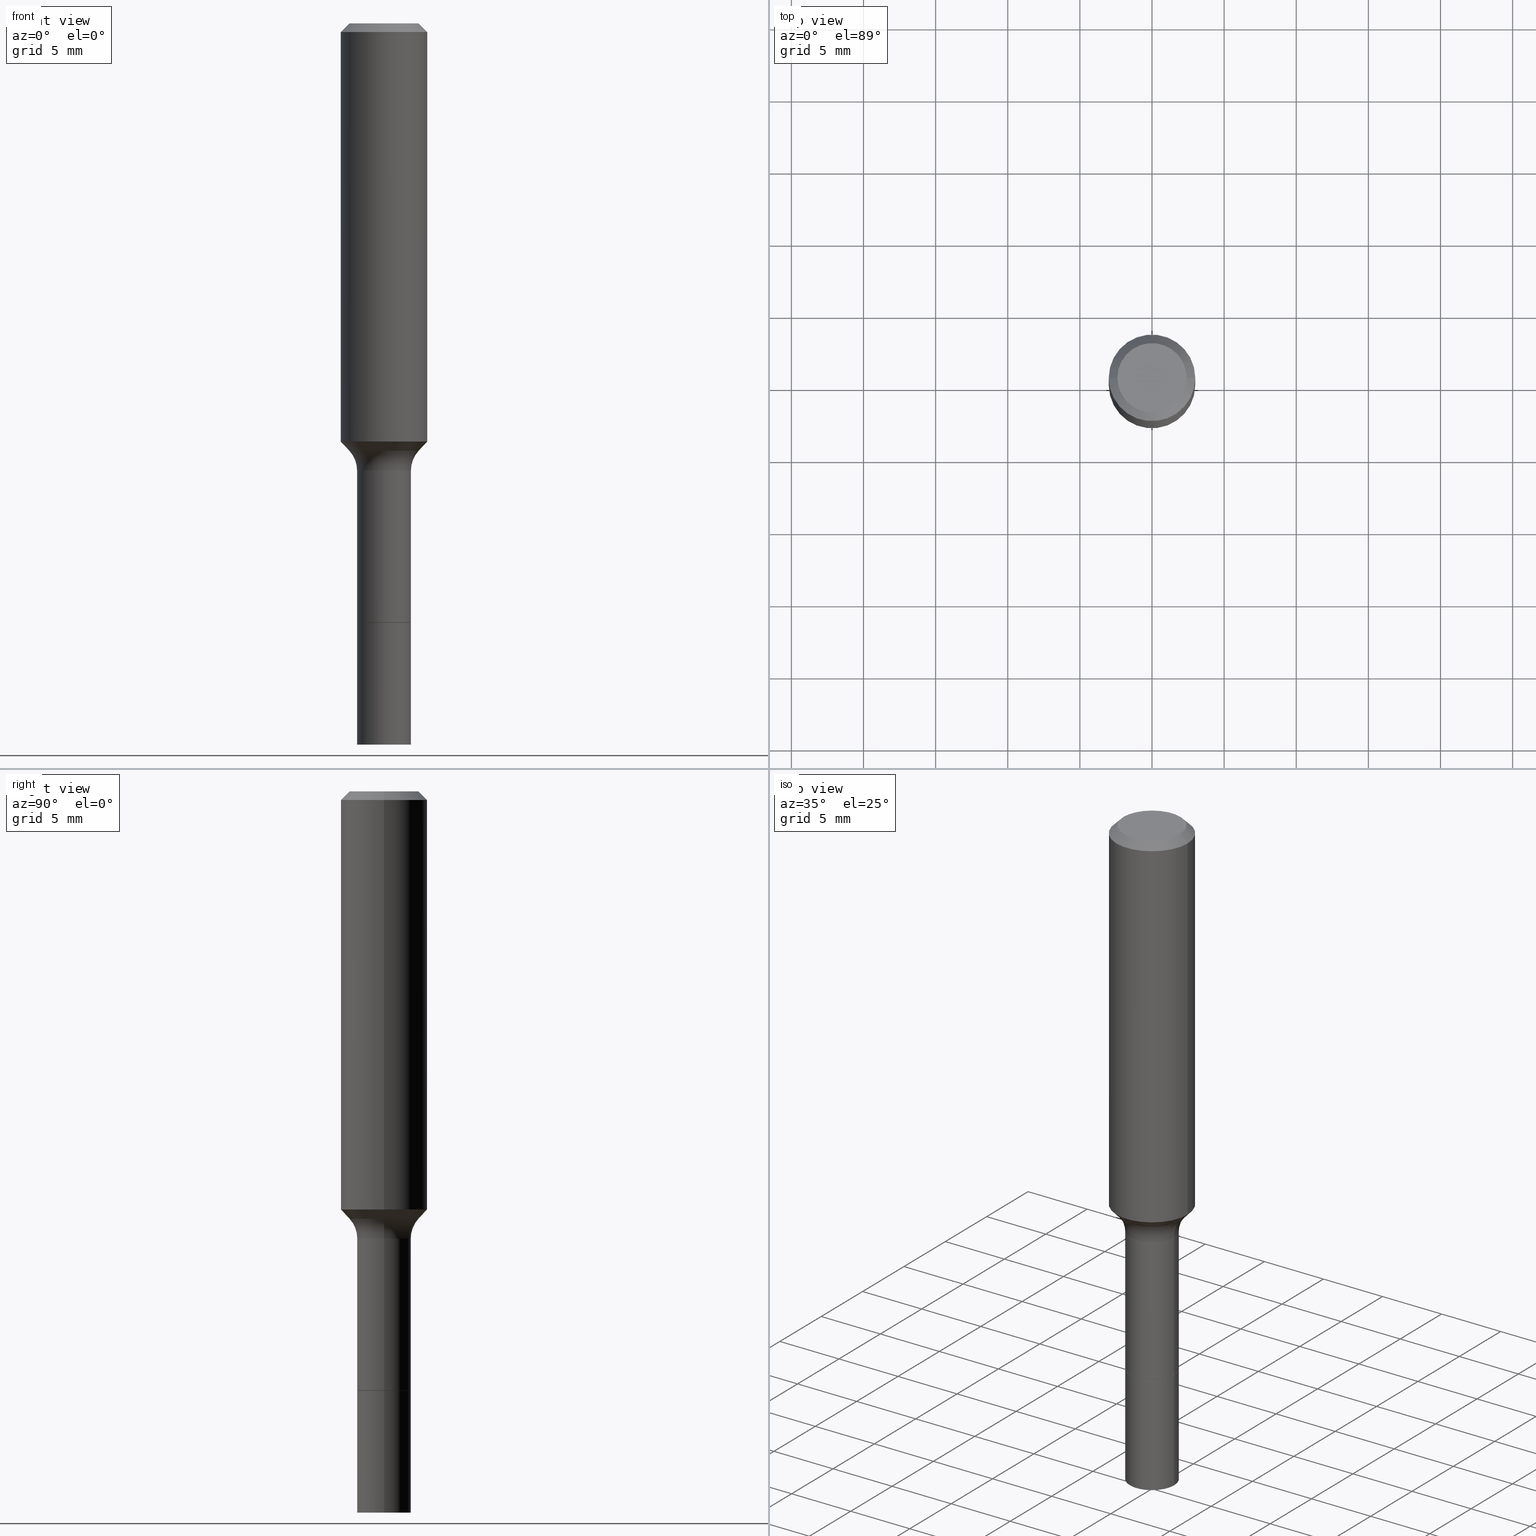
[diagram: canonical four-view strip — front | top / right | iso, engineering-drawing reading convention]
A machine part, canonical four-view strip (front | top / right | iso — engineering-drawing reading convention). The complete STEP part file that produces these views, byte-faithful:
ISO-10303-21;
HEADER;
FILE_DESCRIPTION (( 'STEP AP203' ),
    '1' );
FILE_NAME ('58492.STEP',
    '2025-04-01T15:23:42',
    ( '' ),
    ( '' ),
    'SwSTEP 2.0',
    'SolidWorks 2024',
    '' );
FILE_SCHEMA (( 'CONFIG_CONTROL_DESIGN' ));
ENDSEC;

DATA;
#1 = DIRECTION ( 'NONE',  ( -2.445468806185136877E-29, 3.491481338843145188E-15, 1.000000000000000000 ) ) ;
#2 = CARTESIAN_POINT ( 'NONE',  ( -0.1181000000000000660, 8.391509709326787887E-16, -5.809262341591047287E-30 ) ) ;
#3 = APPROVAL ( #118, 'UNSPECIFIED' ) ;
#4 = CARTESIAN_POINT ( 'NONE',  ( -0.07350000000000000977, -4.462713570749628133E-15, -1.635000000000000231 ) ) ;
#5 = EDGE_CURVE ( 'NONE', #234, #71, #333, .T. ) ;
#6 = AXIS2_PLACEMENT_3D ( 'NONE', #7, #370, #212 ) ;
#7 = CARTESIAN_POINT ( 'NONE',  ( 3.999564232515791317E-29, -5.710317729677964577E-15, -1.635500000000000176 ) ) ;
#8 = PERSON_AND_ORGANIZATION ( #266, #459 ) ;
#9 = DIRECTION ( 'NONE',  ( -2.445468806185136597E-29, 3.491481338843145583E-15, 1.000000000000000000 ) ) ;
#10 = CARTESIAN_POINT ( 'NONE',  ( 3.999564232515791317E-29, -5.710317729677964577E-15, -1.635500000000000176 ) ) ;
#11 = ORIENTED_EDGE ( 'NONE', *, *, #187, .F. ) ;
#12 = DIRECTION ( 'NONE',  ( 1.000000000000000000, -6.982962677686266711E-15, 4.876176775795936353E-29 ) ) ;
#13 = ADVANCED_FACE ( 'NONE', ( #310 ), #202, .F. ) ;
#14 = AXIS2_PLACEMENT_3D ( 'NONE', #479, #281, #243 ) ;
#15 = CIRCLE ( 'NONE', #155, 0.09447999999999998066 ) ;
#16 = ORIENTED_EDGE ( 'NONE', *, *, #115, .T. ) ;
#17 = FACE_OUTER_BOUND ( 'NONE', #340, .T. ) ;
#18 = EDGE_LOOP ( 'NONE', ( #20, #101, #227, #112 ) ) ;
#19 = DIRECTION ( 'NONE',  ( 1.000000000000000000, -6.982962677686265133E-15, 0.000000000000000000 ) ) ;
#20 = ORIENTED_EDGE ( 'NONE', *, *, #410, .F. ) ;
#21 = EDGE_LOOP ( 'NONE', ( #259, #106, #186, #453 ) ) ;
#22 = CARTESIAN_POINT ( 'NONE',  ( 3.999564232515791317E-29, -5.710317729677964577E-15, -1.635500000000000176 ) ) ;
#23 = ORIENTED_EDGE ( 'NONE', *, *, #410, .T. ) ;
#24 = CLOSED_SHELL ( 'NONE', ( #395, #357, #344, #437, #270, #433, #134, #512, #338, #229, #413, #286, #258, #495 ) ) ;
#25 = AXIS2_PLACEMENT_3D ( 'NONE', #285, #474, #240 ) ;
#26 = CC_DESIGN_PERSON_AND_ORGANIZATION_ASSIGNMENT ( #331, #110, ( #167 ) ) ;
#27 = DIRECTION ( 'NONE',  ( -0.6819983600624988096, 7.399397606724288154E-15, 0.7313537016191702378 ) ) ;
#28 = ORIENTED_EDGE ( 'NONE', *, *, #42, .F. ) ;
#29 = CARTESIAN_POINT ( 'NONE',  ( 0.09447999999999998066, -7.704367267948738690E-16, -3.085620075131172158E-17 ) ) ;
#30 = ORIENTED_EDGE ( 'NONE', *, *, #429, .F. ) ;
#31 = DIRECTION ( 'NONE',  ( 0.7071067811865460184, -7.319954787623251312E-15, -0.7071067811865490160 ) ) ;
#32 = CIRCLE ( 'NONE', #509, 0.08000000000000000167 ) ;
#33 =( GEOMETRIC_REPRESENTATION_CONTEXT ( 3 ) GLOBAL_UNCERTAINTY_ASSIGNED_CONTEXT ( ( #317 ) ) GLOBAL_UNIT_ASSIGNED_CONTEXT ( ( #242, #44, #233 ) ) REPRESENTATION_CONTEXT ( 'NONE', 'WORKASPACE' ) );
#34 = DIRECTION ( 'NONE',  ( 1.000000000000000000, -6.982962677686265922E-15, 4.883557194083112340E-29 ) ) ;
#35 = FACE_OUTER_BOUND ( 'NONE', #94, .T. ) ;
#36 = LOCAL_TIME ( 11, 23, 42.00000000000000000, #192 ) ;
#37 = CARTESIAN_POINT ( 'NONE',  ( 0.07350000000000012079, -7.386228772322672689E-15, -1.968500000000000139 ) ) ;
#38 = APPROVAL_ROLE ( '' ) ;
#39 = LINE ( 'NONE', #2, #408 ) ;
#40 = PRODUCT ( '58492', '58492', '', ( #116 ) ) ;
#41 = AXIS2_PLACEMENT_3D ( 'NONE', #49, #403, #46 ) ;
#42 = EDGE_CURVE ( 'NONE', #388, #425, #364, .T. ) ;
#43 = CIRCLE ( 'NONE', #247, 0.07349999999999994038 ) ;
#44 =( NAMED_UNIT ( * ) PLANE_ANGLE_UNIT ( ) SI_UNIT ( $, .RADIAN. ) );
#45 = CARTESIAN_POINT ( 'NONE',  ( 3.999564232515791317E-29, -5.710317729677964577E-15, -1.635500000000000176 ) ) ;
#46 = DIRECTION ( 'NONE',  ( 1.000000000000000000, -6.982962677686266711E-15, 4.876176775795936353E-29 ) ) ;
#47 = CARTESIAN_POINT ( 'NONE',  ( 3.998341498112699076E-29, -5.708571989008543862E-15, -1.635000000000000231 ) ) ;
#48 = EDGE_CURVE ( 'NONE', #388, #414, #211, .T. ) ;
#49 = CARTESIAN_POINT ( 'NONE',  ( 0.000000000000000000, 0.000000000000000000, 0.000000000000000000 ) ) ;
#50 = DIRECTION ( 'NONE',  ( -2.445468806185136597E-29, 3.491481338843145583E-15, 1.000000000000000000 ) ) ;
#51 = DIRECTION ( 'NONE',  ( -2.445468806185136597E-29, 3.491481338843145583E-15, 1.000000000000000000 ) ) ;
#52 = EDGE_LOOP ( 'NONE', ( #457, #62, #315, #147 ) ) ;
#53 = DIRECTION ( 'NONE',  ( -2.445468806185136597E-29, 3.491481338843145583E-15, 1.000000000000000000 ) ) ;
#54 = AXIS2_PLACEMENT_3D ( 'NONE', #165, #133, #255 ) ;
#55 = LOCAL_TIME ( 11, 23, 42.00000000000000000, #287 ) ;
#56 = EDGE_LOOP ( 'NONE', ( #302, #99, #307, #279 ) ) ;
#57 = CARTESIAN_POINT ( 'NONE',  ( -0.09447999999999998066, 7.009847083995354710E-16, -3.085620075132147757E-17 ) ) ;
#58 = EDGE_CURVE ( 'NONE', #71, #342, #79, .T. ) ;
#59 = VERTEX_POINT ( 'NONE', #75 ) ;
#60 = ORIENTED_EDGE ( 'NONE', *, *, #183, .F. ) ;
#61 = DIRECTION ( 'NONE',  ( -2.445468806185136597E-29, 3.491481338843145583E-15, 1.000000000000000000 ) ) ;
#62 = ORIENTED_EDGE ( 'NONE', *, *, #89, .T. ) ;
#63 = CARTESIAN_POINT ( 'NONE',  ( 7.545787641473140628E-46, -1.077338491108201769E-31, -3.085620075131671975E-17 ) ) ;
#64 = ORIENTED_EDGE ( 'NONE', *, *, #487, .T. ) ;
#65 = AXIS2_PLACEMENT_3D ( 'NONE', #447, #334, #130 ) ;
#66 = ORIENTED_EDGE ( 'NONE', *, *, #48, .T. ) ;
#67 = CARTESIAN_POINT ( 'NONE',  ( -0.07349999999999999589, -5.769400461811675225E-15, -1.635500000000000176 ) ) ;
#68 = ORIENTED_EDGE ( 'NONE', *, *, #183, .T. ) ;
#69 = EDGE_CURVE ( 'NONE', #145, #303, #32, .T. ) ;
#70 = DATE_AND_TIME ( #431, #128 ) ;
#71 = VERTEX_POINT ( 'NONE', #37 ) ;
#72 = CARTESIAN_POINT ( 'NONE',  ( 0.1180999999999999966, -9.071566814582237199E-16, -0.02362000000000014435 ) ) ;
#73 = ADVANCED_BREP_SHAPE_REPRESENTATION ( '58492', ( #109, #292, #336 ), #33 ) ;
#74 = CIRCLE ( 'NONE', #483, 0.07349999999999994038 ) ;
#75 = CARTESIAN_POINT ( 'NONE',  ( 0.09499170387046632080, -4.734181733092964683E-15, -1.165940131195000173 ) ) ;
#76 = PERSON_AND_ORGANIZATION ( #266, #459 ) ;
#77 = CARTESIAN_POINT ( 'NONE',  ( 5.776197320209328408E-31, -8.246878922347560526E-17, -0.02362000000000014435 ) ) ;
#78 = CARTESIAN_POINT ( 'NONE',  ( 0.000000000000000000, 0.000000000000000000, 0.000000000000000000 ) ) ;
#79 = LINE ( 'NONE', #400, #371 ) ;
#80 = VECTOR ( 'NONE', #163, 39.37007874015748143 ) ;
#81 = APPROVAL_PERSON_ORGANIZATION ( #472, #3, #38 ) ;
#82 = CARTESIAN_POINT ( 'NONE',  ( 0.1180999999999999966, -8.926936027602933910E-16, -0.02362000000000014435 ) ) ;
#83 = CARTESIAN_POINT ( 'NONE',  ( 3.999564232515791317E-29, -5.710317729677964577E-15, -1.635500000000000176 ) ) ;
#84 = CC_DESIGN_APPROVAL ( #206, ( #167 ) ) ;
#85 = CYLINDRICAL_SURFACE ( 'NONE', #322, 0.07350000000000005140 ) ;
#86 = APPROVAL_ROLE ( '' ) ;
#87 = CONICAL_SURFACE ( 'NONE', #161, 0.09499170387046637631, 0.7504915783575620836 ) ;
#88 = DIRECTION ( 'NONE',  ( 1.000000000000000000, -6.982962677686266711E-15, 0.000000000000000000 ) ) ;
#89 = EDGE_CURVE ( 'NONE', #150, #493, #107, .T. ) ;
#90 = FACE_OUTER_BOUND ( 'NONE', #219, .T. ) ;
#91 = EDGE_CURVE ( 'NONE', #425, #138, #296, .T. ) ;
#92 = ORIENTED_EDGE ( 'NONE', *, *, #418, .T. ) ;
#93 = CYLINDRICAL_SURFACE ( 'NONE', #41, 0.1181000000000000660 ) ;
#94 = EDGE_LOOP ( 'NONE', ( #11, #351, #423, #269 ) ) ;
#95 = DIRECTION ( 'NONE',  ( 1.000000000000000000, -6.982962677686262766E-15, 0.000000000000000000 ) ) ;
#96 = VECTOR ( 'NONE', #31, 39.37007874015748143 ) ;
#97 = EDGE_LOOP ( 'NONE', ( #463, #311, #16, #64 ) ) ;
#98 = LOCAL_TIME ( 11, 23, 42.00000000000000000, #396 ) ;
#99 = ORIENTED_EDGE ( 'NONE', *, *, #48, .F. ) ;
#100 = CARTESIAN_POINT ( 'NONE',  ( -0.07350000000000005140, -5.188068818894290870E-15, -1.635500000000000176 ) ) ;
#101 = ORIENTED_EDGE ( 'NONE', *, *, #354, .T. ) ;
#102 = ORIENTED_EDGE ( 'NONE', *, *, #58, .F. ) ;
#103 = DIRECTION ( 'NONE',  ( -2.445468806185136597E-29, 3.491481338843145583E-15, 1.000000000000000000 ) ) ;
#104 = ORIENTED_EDGE ( 'NONE', *, *, #475, .F. ) ;
#105 = DIRECTION ( 'NONE',  ( -2.445468806185136597E-29, 3.491481338843145583E-15, 1.000000000000000000 ) ) ;
#106 = ORIENTED_EDGE ( 'NONE', *, *, #5, .T. ) ;
#107 = CIRCLE ( 'NONE', #346, 0.07299999999999999545 ) ;
#108 = CIRCLE ( 'NONE', #204, 0.09499170387046637631 ) ;
#109 = MANIFOLD_SOLID_BREP ( 'Body-Move/Copy2[1]', #516 ) ;
#110 = PERSON_AND_ORGANIZATION_ROLE ( 'design_supplier' ) ;
#111 = EDGE_CURVE ( 'NONE', #150, #300, #438, .T. ) ;
#112 = ORIENTED_EDGE ( 'NONE', *, *, #405, .F. ) ;
#113 = DATE_TIME_ROLE ( 'creation_date' ) ;
#114 = CARTESIAN_POINT ( 'NONE',  ( -0.07299999999999999545, -5.188972305398980568E-15, -1.635500000000000176 ) ) ;
#115 = EDGE_CURVE ( 'NONE', #59, #265, #184, .T. ) ;
#116 = MECHANICAL_CONTEXT ( 'NONE', #394, 'mechanical' ) ;
#117 = LINE ( 'NONE', #513, #436 ) ;
#118 = APPROVAL_STATUS ( 'not_yet_approved' ) ;
#119 = DIRECTION ( 'NONE',  ( 2.438088387897960049E-29, -3.491481338843145188E-15, -1.000000000000000000 ) ) ;
#120 = APPLICATION_PROTOCOL_DEFINITION ( 'international standard', 'config_control_design', 1994, #394 ) ;
#121 = DIRECTION ( 'NONE',  ( -6.982962677686266711E-15, -1.000000000000000000, 3.491481338843145583E-15 ) ) ;
#122 = DIRECTION ( 'NONE',  ( -2.445468806185136877E-29, 3.491481338843145188E-15, 1.000000000000000000 ) ) ;
#123 = AXIS2_PLACEMENT_3D ( 'NONE', #174, #446, #294 ) ;
#124 = DIMENSIONAL_EXPONENTS ( 1.000000000000000000, 0.000000000000000000, 0.000000000000000000, 0.000000000000000000, 0.000000000000000000, 0.000000000000000000, 0.000000000000000000 ) ;
#125 = CONICAL_SURFACE ( 'NONE', #469, 0.09499170387046637631, 0.7504915783575620836 ) ;
#126 = DIRECTION ( 'NONE',  ( 1.000000000000000000, -6.982962677686273810E-15, 0.000000000000000000 ) ) ;
#127 = CARTESIAN_POINT ( 'NONE',  ( 5.776197320209328408E-31, -8.246878922347560526E-17, -0.02362000000000014435 ) ) ;
#128 = LOCAL_TIME ( 11, 23, 42.00000000000000000, #239 ) ;
#129 = DATE_AND_TIME ( #448, #177 ) ;
#130 = DIRECTION ( 'NONE',  ( -1.000000000000000000, 6.982962677686265922E-15, -4.876176775795935793E-29 ) ) ;
#131 = AXIS2_PLACEMENT_3D ( 'NONE', #77, #397, #319 ) ;
#132 = CIRCLE ( 'NONE', #195, 0.07299999999999999545 ) ;
#133 = DIRECTION ( 'NONE',  ( -2.445468806185136597E-29, 3.491481338843145583E-15, 1.000000000000000000 ) ) ;
#134 = ADVANCED_FACE ( 'NONE', ( #441 ), #477, .T. ) ;
#135 = ORIENTED_EDGE ( 'NONE', *, *, #170, .F. ) ;
#136 = CARTESIAN_POINT ( 'NONE',  ( 0.07349999999999999589, -6.223565486487904770E-15, -1.635500000000000176 ) ) ;
#137 = SECURITY_CLASSIFICATION ( '', '', #476 ) ;
#138 = VERTEX_POINT ( 'NONE', #72 ) ;
#139 = DIRECTION ( 'NONE',  ( 1.000000000000000000, -6.982962677686267499E-15, 0.000000000000000000 ) ) ;
#140 = SHAPE_DEFINITION_REPRESENTATION ( #411, #73 ) ;
#141 = ADVANCED_FACE ( 'NONE', ( #440 ), #200, .T. ) ;
#142 = VERTEX_POINT ( 'NONE', #515 ) ;
#143 = CARTESIAN_POINT ( 'NONE',  ( 0.07299999999999999545, -6.220074005149062551E-15, -1.635500000000000176 ) ) ;
#144 = VERTEX_POINT ( 'NONE', #160 ) ;
#145 = VERTEX_POINT ( 'NONE', #356 ) ;
#146 = CARTESIAN_POINT ( 'NONE',  ( 2.851270220716778580E-29, -4.070858210275671756E-15, -1.165940131195000173 ) ) ;
#147 = ORIENTED_EDGE ( 'NONE', *, *, #354, .F. ) ;
#148 = EDGE_LOOP ( 'NONE', ( #181, #175, #60, #377 ) ) ;
#149 = DIRECTION ( 'NONE',  ( 1.000000000000000000, -6.982962677686268288E-15, 0.000000000000000000 ) ) ;
#150 = VERTEX_POINT ( 'NONE', #114 ) ;
#151 = DIRECTION ( 'NONE',  ( 0.6819983600624988096, -2.208861293262478169E-15, 0.7313537016191702378 ) ) ;
#152 = ORIENTED_EDGE ( 'NONE', *, *, #475, .T. ) ;
#153 = AXIS2_PLACEMENT_3D ( 'NONE', #484, #486, #404 ) ;
#154 = CC_DESIGN_DATE_AND_TIME_ASSIGNMENT ( #70, #159, ( #137 ) ) ;
#155 = AXIS2_PLACEMENT_3D ( 'NONE', #63, #105, #312 ) ;
#156 = DIRECTION ( 'NONE',  ( -1.000000000000000000, 7.105427357601005014E-15, 0.000000000000000000 ) ) ;
#157 = APPROVAL_DATE_TIME ( #514, #206 ) ;
#158 = DIRECTION ( 'NONE',  ( -2.445468806185136597E-29, 3.491481338843145583E-15, 1.000000000000000000 ) ) ;
#159 = DATE_TIME_ROLE ( 'classification_date' ) ;
#160 = CARTESIAN_POINT ( 'NONE',  ( -0.1181000000000001354, -3.145186189004920235E-15, -1.141159517483703700 ) ) ;
#161 = AXIS2_PLACEMENT_3D ( 'NONE', #409, #406, #171 ) ;
#162 = DATE_AND_TIME ( #478, #55 ) ;
#163 = DIRECTION ( 'NONE',  ( -0.7071067811865460184, 2.468850131082241283E-15, -0.7071067811865490160 ) ) ;
#164 = CARTESIAN_POINT ( 'NONE',  ( 3.999564232515791317E-29, -5.710317729677964577E-15, -1.635500000000000176 ) ) ;
#165 = CARTESIAN_POINT ( 'NONE',  ( 2.790670002887679665E-29, -3.984337159937599615E-15, -1.141159517483703700 ) ) ;
#166 = AXIS2_PLACEMENT_3D ( 'NONE', #337, #9, #126 ) ;
#167 = PRODUCT_DEFINITION_FORMATION_WITH_SPECIFIED_SOURCE ( 'ANY', '', #40, .NOT_KNOWN. ) ;
#168 = DIRECTION ( 'NONE',  ( -2.445468806185136597E-29, 3.491481338843145583E-15, 1.000000000000000000 ) ) ;
#169 = PERSON_AND_ORGANIZATION_ROLE ( 'creator' ) ;
#170 = EDGE_CURVE ( 'NONE', #308, #138, #117, .T. ) ;
#171 = DIRECTION ( 'NONE',  ( 1.000000000000000000, -6.982962677686262766E-15, 0.000000000000000000 ) ) ;
#172 = DIRECTION ( 'NONE',  ( 1.000000000000000000, -6.982962677686262766E-15, 0.000000000000000000 ) ) ;
#173 = AXIS2_PLACEMENT_3D ( 'NONE', #188, #387, #139 ) ;
#174 = CARTESIAN_POINT ( 'NONE',  ( 2.984694677948959472E-29, -4.261352974058059028E-15, -1.220499999999999918 ) ) ;
#175 = ORIENTED_EDGE ( 'NONE', *, *, #373, .T. ) ;
#176 = CARTESIAN_POINT ( 'NONE',  ( 0.000000000000000000, 0.000000000000000000, 0.000000000000000000 ) ) ;
#177 = LOCAL_TIME ( 11, 23, 42.00000000000000000, #214 ) ;
#178 = ORIENTED_EDGE ( 'NONE', *, *, #187, .T. ) ;
#179 = FACE_OUTER_BOUND ( 'NONE', #52, .T. ) ;
#180 = ORIENTED_EDGE ( 'NONE', *, *, #191, .T. ) ;
#181 = ORIENTED_EDGE ( 'NONE', *, *, #250, .T. ) ;
#182 = CARTESIAN_POINT ( 'NONE',  ( 0.09499170387046637631, -4.734181733092964683E-15, -1.165940131195000173 ) ) ;
#183 = EDGE_CURVE ( 'NONE', #308, #144, #468, .T. ) ;
#184 = CIRCLE ( 'NONE', #295, 0.08000000000000000167 ) ;
#185 = ORIENTED_EDGE ( 'NONE', *, *, #341, .T. ) ;
#186 = ORIENTED_EDGE ( 'NONE', *, *, #58, .T. ) ;
#187 = EDGE_CURVE ( 'NONE', #144, #425, #39, .T. ) ;
#188 = CARTESIAN_POINT ( 'NONE',  ( 3.999564232515791317E-29, -5.710317729677964577E-15, -1.635500000000000176 ) ) ;
#189 = ORIENTED_EDGE ( 'NONE', *, *, #289, .T. ) ;
#190 = DIRECTION ( 'NONE',  ( -1.000000000000000000, 6.982962677686266711E-15, 0.000000000000000000 ) ) ;
#191 = EDGE_CURVE ( 'NONE', #414, #138, #290, .T. ) ;
#192 = COORDINATED_UNIVERSAL_TIME_OFFSET ( 5, 0, .BEHIND. ) ;
#193 = CARTESIAN_POINT ( 'NONE',  ( -0.1180999999999999966, 7.422191030112725094E-16, -0.02362000000000014435 ) ) ;
#194 = CONICAL_SURFACE ( 'NONE', #173, 0.07299999999999999545, 0.7853981633975507526 ) ;
#195 = AXIS2_PLACEMENT_3D ( 'NONE', #424, #53, #301 ) ;
#196 = PERSON_AND_ORGANIZATION_ROLE ( 'classification_officer' ) ;
#197 = CYLINDRICAL_SURFACE ( 'NONE', #283, 0.1181000000000000660 ) ;
#198 = PRODUCT_DEFINITION ( 'UNKNOWN', '', #167, #325 ) ;
#199 = DIRECTION ( 'NONE',  ( -2.445468806185136597E-29, 3.491481338843145583E-15, 1.000000000000000000 ) ) ;
#200 = PLANE ( 'NONE',  #458 ) ;
#201 = CALENDAR_DATE ( 2025, 1, 4 ) ;
#202 = PLANE ( 'NONE',  #261 ) ;
#203 = CIRCLE ( 'NONE', #237, 0.07349999999999999589 ) ;
#204 = AXIS2_PLACEMENT_3D ( 'NONE', #507, #260, #415 ) ;
#205 = APPROVAL_DATE_TIME ( #162, #3 ) ;
#206 = APPROVAL ( #518, 'UNSPECIFIED' ) ;
#207 = DIRECTION ( 'NONE',  ( 1.000000000000000000, -6.982962677686259611E-15, 0.000000000000000000 ) ) ;
#208 = DIRECTION ( 'NONE',  ( -2.445468806185136597E-29, 3.491481338843145583E-15, 1.000000000000000000 ) ) ;
#209 = DIRECTION ( 'NONE',  ( -2.438088387897960049E-29, 3.491481338843145188E-15, 1.000000000000000000 ) ) ;
#210 = EDGE_CURVE ( 'NONE', #493, #142, #235, .T. ) ;
#211 = CIRCLE ( 'NONE', #517, 0.09447999999999998066 ) ;
#212 = DIRECTION ( 'NONE',  ( 1.000000000000000000, -6.982962677686260400E-15, 0.000000000000000000 ) ) ;
#213 = PLANE ( 'NONE',  #65 ) ;
#214 = COORDINATED_UNIVERSAL_TIME_OFFSET ( 5, 0, .BEHIND. ) ;
#215 = DIRECTION ( 'NONE',  ( -2.445468806185136597E-29, 3.491481338843145583E-15, 1.000000000000000000 ) ) ;
#216 = ORIENTED_EDGE ( 'NONE', *, *, #329, .F. ) ;
#217 = CONICAL_SURFACE ( 'NONE', #153, 0.1180999999999999966, 0.7853981633974461696 ) ;
#218 = CONICAL_SURFACE ( 'NONE', #401, 0.07299999999999999545, 0.7853981633975507526 ) ;
#219 = EDGE_LOOP ( 'NONE', ( #30, #504, #465, #501 ) ) ;
#220 = CARTESIAN_POINT ( 'NONE',  ( 5.776197320209328408E-31, -8.246878922347560526E-17, -0.02362000000000014435 ) ) ;
#221 = APPROVAL_STATUS ( 'not_yet_approved' ) ;
#222 = ORIENTED_EDGE ( 'NONE', *, *, #289, .F. ) ;
#223 = CARTESIAN_POINT ( 'NONE',  ( 2.984694677948959472E-29, -4.261352974058059028E-15, -1.220499999999999918 ) ) ;
#224 = EDGE_LOOP ( 'NONE', ( #66, #345 ) ) ;
#225 = FACE_OUTER_BOUND ( 'NONE', #97, .T. ) ;
#226 = ORIENTED_EDGE ( 'NONE', *, *, #298, .T. ) ;
#227 = ORIENTED_EDGE ( 'NONE', *, *, #402, .T. ) ;
#228 = CIRCLE ( 'NONE', #6, 0.07349999999999999589 ) ;
#229 = ADVANCED_FACE ( 'NONE', ( #35 ), #197, .T. ) ;
#230 = EDGE_LOOP ( 'NONE', ( #222, #460 ) ) ;
#231 = DIRECTION ( 'NONE',  ( -2.445468806185136877E-29, 3.491481338843145188E-15, 1.000000000000000000 ) ) ;
#232 = ORIENTED_EDGE ( 'NONE', *, *, #253, .F. ) ;
#233 =( NAMED_UNIT ( * ) SI_UNIT ( $, .STERADIAN. ) SOLID_ANGLE_UNIT ( ) );
#234 = VERTEX_POINT ( 'NONE', #252 ) ;
#235 = LINE ( 'NONE', #511, #313 ) ;
#236 = CC_DESIGN_PERSON_AND_ORGANIZATION_ASSIGNMENT ( #8, #169, ( #167 ) ) ;
#237 = AXIS2_PLACEMENT_3D ( 'NONE', #490, #51, #372 ) ;
#238 = VECTOR ( 'NONE', #151, 39.37007874015748143 ) ;
#239 = COORDINATED_UNIVERSAL_TIME_OFFSET ( 5, 0, .BEHIND. ) ;
#240 = DIRECTION ( 'NONE',  ( 1.000000000000000000, -6.982962677686266711E-15, 4.876176775795935793E-29 ) ) ;
#241 = APPROVAL_PERSON_ORGANIZATION ( #439, #382, #86 ) ;
#242 =( CONVERSION_BASED_UNIT ( 'INCH', #398 ) LENGTH_UNIT ( ) NAMED_UNIT ( #124 ) );
#243 = DIRECTION ( 'NONE',  ( 1.000000000000000000, -6.982962677686269077E-15, 0.000000000000000000 ) ) ;
#244 = PERSON_AND_ORGANIZATION_ROLE ( 'design_owner' ) ;
#245 = DIRECTION ( 'NONE',  ( -0.7071067811866199593, 7.493145998870616062E-15, 0.7071067811864750752 ) ) ;
#246 = AXIS2_PLACEMENT_3D ( 'NONE', #368, #168, #172 ) ;
#247 = AXIS2_PLACEMENT_3D ( 'NONE', #456, #263, #19 ) ;
#248 = CC_DESIGN_DATE_AND_TIME_ASSIGNMENT ( #284, #113, ( #198 ) ) ;
#249 = DIRECTION ( 'NONE',  ( -2.445468806185136597E-29, 3.491481338843145583E-15, 1.000000000000000000 ) ) ;
#250 = EDGE_CURVE ( 'NONE', #59, #145, #443, .T. ) ;
#251 = DIRECTION ( 'NONE',  ( 1.000000000000000000, -6.982962677686268288E-15, 0.000000000000000000 ) ) ;
#252 = CARTESIAN_POINT ( 'NONE',  ( -0.07350000000000012079, -5.769400461811673647E-15, -1.968500000000000139 ) ) ;
#253 = EDGE_CURVE ( 'NONE', #138, #425, #390, .T. ) ;
#254 = AXIS2_PLACEMENT_3D ( 'NONE', #297, #257, #299 ) ;
#255 = DIRECTION ( 'NONE',  ( 1.000000000000000000, -6.982962677686269077E-15, 0.000000000000000000 ) ) ;
#256 = APPROVAL_DATE_TIME ( #129, #382 ) ;
#257 = DIRECTION ( 'NONE',  ( -2.445468806185136597E-29, 3.491481338843145583E-15, 1.000000000000000000 ) ) ;
#258 = ADVANCED_FACE ( 'NONE', ( #494 ), #293, .F. ) ;
#259 = ORIENTED_EDGE ( 'NONE', *, *, #467, .F. ) ;
#260 = DIRECTION ( 'NONE',  ( -2.445468806185136597E-29, 3.491481338843145583E-15, 1.000000000000000000 ) ) ;
#261 = AXIS2_PLACEMENT_3D ( 'NONE', #164, #119, #444 ) ;
#262 = AXIS2_PLACEMENT_3D ( 'NONE', #434, #199, #34 ) ;
#263 = DIRECTION ( 'NONE',  ( -2.445468806185136597E-29, 3.491481338843145583E-15, 1.000000000000000000 ) ) ;
#264 = EDGE_LOOP ( 'NONE', ( #381, #349, #92, #216 ) ) ;
#265 = VERTEX_POINT ( 'NONE', #374 ) ;
#266 = PERSON ( 'UNSPECIFIED', 'UNSPECIFIED', 'UNSPECIFIED', ('UNSPECIFIED'), ('UNSPECIFIED'), ('UNSPECIFIED') ) ;
#267 = FACE_OUTER_BOUND ( 'NONE', #506, .T. ) ;
#268 = DIRECTION ( 'NONE',  ( 1.000000000000000000, -6.982962677686261977E-15, 0.000000000000000000 ) ) ;
#269 = ORIENTED_EDGE ( 'NONE', *, *, #91, .F. ) ;
#270 = ADVANCED_FACE ( 'NONE', ( #90 ), #426, .F. ) ;
#271 = DIRECTION ( 'NONE',  ( -2.445468806185136877E-29, 3.491481338843145188E-15, 1.000000000000000000 ) ) ;
#272 = ORIENTED_EDGE ( 'NONE', *, *, #298, .F. ) ;
#273 = ORIENTED_EDGE ( 'NONE', *, *, #467, .T. ) ;
#274 = VECTOR ( 'NONE', #27, 39.37007874015748143 ) ;
#275 = DIRECTION ( 'NONE',  ( -2.445468806185136597E-29, 3.491481338843145583E-15, 1.000000000000000000 ) ) ;
#276 = CONICAL_SURFACE ( 'NONE', #445, 0.1180999999999999966, 0.7853981633974461696 ) ;
#277 = ORIENTED_EDGE ( 'NONE', *, *, #253, .T. ) ;
#278 = PERSON_AND_ORGANIZATION ( #266, #459 ) ;
#279 = ORIENTED_EDGE ( 'NONE', *, *, #91, .T. ) ;
#280 = PERSON_AND_ORGANIZATION ( #266, #459 ) ;
#281 = DIRECTION ( 'NONE',  ( -2.445468806185136597E-29, 3.491481338843145583E-15, 1.000000000000000000 ) ) ;
#282 = DIRECTION ( 'NONE',  ( 2.438088387897960049E-29, -3.491481338843145188E-15, -1.000000000000000000 ) ) ;
#283 = AXIS2_PLACEMENT_3D ( 'NONE', #359, #158, #12 ) ;
#284 = DATE_AND_TIME ( #201, #98 ) ;
#285 = CARTESIAN_POINT ( 'NONE',  ( 0.000000000000000000, 0.000000000000000000, 0.000000000000000000 ) ) ;
#286 = ADVANCED_FACE ( 'NONE', ( #412 ), #213, .F. ) ;
#287 = COORDINATED_UNIVERSAL_TIME_OFFSET ( 5, 0, .BEHIND. ) ;
#288 = DIRECTION ( 'NONE',  ( 1.000000000000000000, -6.982962677686267499E-15, 0.000000000000000000 ) ) ;
#289 = EDGE_CURVE ( 'NONE', #71, #234, #363, .T. ) ;
#290 = LINE ( 'NONE', #82, #96 ) ;
#291 = CIRCLE ( 'NONE', #54, 0.1181000000000001354 ) ;
#292 = MANIFOLD_SOLID_BREP ( 'Body-Move/Copy2[2]', #24 ) ;
#293 = PLANE ( 'NONE',  #500 ) ;
#294 = DIRECTION ( 'NONE',  ( 1.000000000000000000, -6.982962677686265922E-15, 4.883557194083112340E-29 ) ) ;
#295 = AXIS2_PLACEMENT_3D ( 'NONE', #393, #121, #207 ) ;
#296 = CIRCLE ( 'NONE', #131, 0.1180999999999999966 ) ;
#297 = CARTESIAN_POINT ( 'NONE',  ( 4.813905344975441835E-29, -6.872981015512731707E-15, -1.968500000000000139 ) ) ;
#298 = EDGE_CURVE ( 'NONE', #342, #419, #203, .T. ) ;
#299 = DIRECTION ( 'NONE',  ( 1.000000000000000000, -6.982962677686261977E-15, 0.000000000000000000 ) ) ;
#300 = VERTEX_POINT ( 'NONE', #4 ) ;
#301 = DIRECTION ( 'NONE',  ( 1.000000000000000000, -6.982962677686267499E-15, 0.000000000000000000 ) ) ;
#302 = ORIENTED_EDGE ( 'NONE', *, *, #191, .F. ) ;
#303 = VERTEX_POINT ( 'NONE', #449 ) ;
#304 = ADVANCED_FACE ( 'NONE', ( #454 ), #85, .T. ) ;
#305 = VECTOR ( 'NONE', #231, 39.37007874015748143 ) ;
#306 = DIRECTION ( 'NONE',  ( -2.445468806185136597E-29, 3.491481338843145583E-15, 1.000000000000000000 ) ) ;
#307 = ORIENTED_EDGE ( 'NONE', *, *, #42, .T. ) ;
#308 = VERTEX_POINT ( 'NONE', #452 ) ;
#309 = CYLINDRICAL_SURFACE ( 'NONE', #427, 0.07350000000000005140 ) ;
#310 = FACE_OUTER_BOUND ( 'NONE', #508, .T. ) ;
#311 = ORIENTED_EDGE ( 'NONE', *, *, #250, .F. ) ;
#312 = DIRECTION ( 'NONE',  ( 1.000000000000000000, -6.982962677686267499E-15, 4.875432709231658792E-29 ) ) ;
#313 = VECTOR ( 'NONE', #392, 39.37007874015748143 ) ;
#314 = LINE ( 'NONE', #182, #238 ) ;
#315 = ORIENTED_EDGE ( 'NONE', *, *, #210, .T. ) ;
#316 = CARTESIAN_POINT ( 'NONE',  ( 4.813905344975441835E-29, -6.872981015512731707E-15, -1.968500000000000139 ) ) ;
#317 = UNCERTAINTY_MEASURE_WITH_UNIT (LENGTH_MEASURE( 1.000000000000000082E-05 ), #242, 'distance_accuracy_value', 'NONE');
#318 = APPROVAL_ROLE ( '' ) ;
#319 = DIRECTION ( 'NONE',  ( 1.000000000000000000, -6.982962677686266711E-15, 0.000000000000000000 ) ) ;
#320 = DIRECTION ( 'NONE',  ( 1.000000000000000000, 0.000000000000000000, 0.000000000000000000 ) ) ;
#321 = CARTESIAN_POINT ( 'NONE',  ( 7.545787641473140628E-46, -1.077338491108201769E-31, -3.085620075131671975E-17 ) ) ;
#322 = AXIS2_PLACEMENT_3D ( 'NONE', #83, #215, #251 ) ;
#323 = DIRECTION ( 'NONE',  ( -2.445468806185136597E-29, 3.491481338843145583E-15, 1.000000000000000000 ) ) ;
#324 = CARTESIAN_POINT ( 'NONE',  ( -0.1534999999999999420, -3.170669874666305851E-15, -1.220499999999999918 ) ) ;
#325 = DESIGN_CONTEXT ( 'detailed design', #482, 'design' ) ;
#326 = FACE_OUTER_BOUND ( 'NONE', #498, .T. ) ;
#327 = VECTOR ( 'NONE', #245, 39.37007874015748143 ) ;
#328 = CC_DESIGN_APPROVAL ( #3, ( #198 ) ) ;
#329 = EDGE_CURVE ( 'NONE', #144, #308, #291, .T. ) ;
#330 = FACE_OUTER_BOUND ( 'NONE', #455, .T. ) ;
#331 = PERSON_AND_ORGANIZATION ( #266, #459 ) ;
#332 = DIRECTION ( 'NONE',  ( 1.000000000000000000, -6.982962677686273810E-15, 0.000000000000000000 ) ) ;
#333 = CIRCLE ( 'NONE', #489, 0.07350000000000012079 ) ;
#334 = DIRECTION ( 'NONE',  ( 2.438088387897960049E-29, -3.491481338843145188E-15, -1.000000000000000000 ) ) ;
#335 = VECTOR ( 'NONE', #271, 39.37007874015748143 ) ;
#336 = AXIS2_PLACEMENT_3D ( 'NONE', #78, #355, #320 ) ;
#337 = CARTESIAN_POINT ( 'NONE',  ( 3.998341498112699076E-29, -5.708571989008543862E-15, -1.635000000000000231 ) ) ;
#338 = ADVANCED_FACE ( 'NONE', ( #376 ), #87, .T. ) ;
#339 = LINE ( 'NONE', #100, #416 ) ;
#340 = EDGE_LOOP ( 'NONE', ( #152, #422, #385, #432 ) ) ;
#341 = EDGE_CURVE ( 'NONE', #142, #300, #491, .T. ) ;
#342 = VERTEX_POINT ( 'NONE', #136 ) ;
#343 = FACE_OUTER_BOUND ( 'NONE', #148, .T. ) ;
#344 = ADVANCED_FACE ( 'NONE', ( #330 ), #93, .T. ) ;
#345 = ORIENTED_EDGE ( 'NONE', *, *, #430, .T. ) ;
#346 = AXIS2_PLACEMENT_3D ( 'NONE', #45, #323, #288 ) ;
#347 = CYLINDRICAL_SURFACE ( 'NONE', #492, 0.07349999999999996814 ) ;
#348 = EDGE_LOOP ( 'NONE', ( #104, #471 ) ) ;
#349 = ORIENTED_EDGE ( 'NONE', *, *, #429, .T. ) ;
#350 = CARTESIAN_POINT ( 'NONE',  ( -0.07349999999999996814, 5.222489107836734102E-16, -3.615417291337354245E-30 ) ) ;
#351 = ORIENTED_EDGE ( 'NONE', *, *, #329, .T. ) ;
#352 = CARTESIAN_POINT ( 'NONE',  ( -0.1180999999999999966, -1.194252003647858156E-15, -0.02362000000000014435 ) ) ;
#353 = ORIENTED_EDGE ( 'NONE', *, *, #430, .F. ) ;
#354 = EDGE_CURVE ( 'NONE', #300, #142, #399, .T. ) ;
#355 = DIRECTION ( 'NONE',  ( 0.000000000000000000, 0.000000000000000000, 1.000000000000000000 ) ) ;
#356 = CARTESIAN_POINT ( 'NONE',  ( -0.09499170387046632080, -3.395901558849327583E-15, -1.165940131195000173 ) ) ;
#357 = ADVANCED_FACE ( 'NONE', ( #326 ), #217, .T. ) ;
#358 = PERSON_AND_ORGANIZATION ( #266, #459 ) ;
#359 = CARTESIAN_POINT ( 'NONE',  ( 0.000000000000000000, 0.000000000000000000, 0.000000000000000000 ) ) ;
#360 = DIRECTION ( 'NONE',  ( -1.000000000000000000, 6.982962677686265922E-15, -4.876176775795935793E-29 ) ) ;
#361 = PRODUCT_RELATED_PRODUCT_CATEGORY ( 'detail', '', ( #40 ) ) ;
#362 = APPLICATION_PROTOCOL_DEFINITION ( 'international standard', 'config_control_design', 1994, #482 ) ;
#363 = CIRCLE ( 'NONE', #254, 0.07350000000000012079 ) ;
#364 = LINE ( 'NONE', #193, #80 ) ;
#365 = APPROVAL_PERSON_ORGANIZATION ( #280, #206, #318 ) ;
#366 = CALENDAR_DATE ( 2025, 1, 4 ) ;
#367 = DIRECTION ( 'NONE',  ( -2.445468806185136877E-29, 3.491481338843145188E-15, 1.000000000000000000 ) ) ;
#368 = CARTESIAN_POINT ( 'NONE',  ( 2.851270220716778580E-29, -4.070858210275671756E-15, -1.165940131195000173 ) ) ;
#369 = EDGE_CURVE ( 'NONE', #419, #342, #228, .T. ) ;
#370 = DIRECTION ( 'NONE',  ( -2.445468806185136597E-29, 3.491481338843145583E-15, 1.000000000000000000 ) ) ;
#371 = VECTOR ( 'NONE', #1, 39.37007874015748143 ) ;
#372 = DIRECTION ( 'NONE',  ( 1.000000000000000000, -6.982962677686260400E-15, 0.000000000000000000 ) ) ;
#373 = EDGE_CURVE ( 'NONE', #145, #144, #470, .T. ) ;
#374 = CARTESIAN_POINT ( 'NONE',  ( 0.07349999999999994038, -4.774600730867999221E-15, -1.220499999999999918 ) ) ;
#375 = CC_DESIGN_PERSON_AND_ORGANIZATION_ASSIGNMENT ( #76, #244, ( #40 ) ) ;
#376 = FACE_OUTER_BOUND ( 'NONE', #264, .T. ) ;
#377 = ORIENTED_EDGE ( 'NONE', *, *, #418, .F. ) ;
#378 = FACE_OUTER_BOUND ( 'NONE', #21, .T. ) ;
#379 = EDGE_LOOP ( 'NONE', ( #189, #273, #272, #102 ) ) ;
#380 = DIRECTION ( 'NONE',  ( 1.000000000000000000, -6.982962677686265133E-15, 0.000000000000000000 ) ) ;
#381 = ORIENTED_EDGE ( 'NONE', *, *, #373, .F. ) ;
#382 = APPROVAL ( #221, 'UNSPECIFIED' ) ;
#383 = FACE_OUTER_BOUND ( 'NONE', #56, .T. ) ;
#384 = CARTESIAN_POINT ( 'NONE',  ( 4.813905344975441835E-29, -6.872981015512731707E-15, -1.968500000000000139 ) ) ;
#385 = ORIENTED_EDGE ( 'NONE', *, *, #341, .F. ) ;
#386 = AXIS2_PLACEMENT_3D ( 'NONE', #127, #50, #88 ) ;
#387 = DIRECTION ( 'NONE',  ( -2.445468806185136597E-29, 3.491481338843145583E-15, 1.000000000000000000 ) ) ;
#388 = VERTEX_POINT ( 'NONE', #57 ) ;
#389 = ORIENTED_EDGE ( 'NONE', *, *, #369, .T. ) ;
#390 = CIRCLE ( 'NONE', #386, 0.1180999999999999966 ) ;
#391 = PERSON_AND_ORGANIZATION_ROLE ( 'creator' ) ;
#392 = DIRECTION ( 'NONE',  ( 0.7071067811866199593, -2.468850131083015945E-15, 0.7071067811864750752 ) ) ;
#393 = CARTESIAN_POINT ( 'NONE',  ( 0.1534999999999999420, -5.333237745082900873E-15, -1.220499999999999918 ) ) ;
#394 = APPLICATION_CONTEXT ( 'configuration controlled 3d designs of mechanical parts and assemblies' ) ;
#395 = ADVANCED_FACE ( 'NONE', ( #17 ), #194, .T. ) ;
#396 = COORDINATED_UNIVERSAL_TIME_OFFSET ( 5, 0, .BEHIND. ) ;
#397 = DIRECTION ( 'NONE',  ( -2.445468806185136597E-29, 3.491481338843145583E-15, 1.000000000000000000 ) ) ;
#398 = LENGTH_MEASURE_WITH_UNIT ( LENGTH_MEASURE( 0.02539999999999999897 ), #510 );
#399 = CIRCLE ( 'NONE', #451, 0.07349999999999999589 ) ;
#400 = CARTESIAN_POINT ( 'NONE',  ( 0.07350000000000005140, -6.223565486487906347E-15, -1.635500000000000176 ) ) ;
#401 = AXIS2_PLACEMENT_3D ( 'NONE', #499, #103, #421 ) ;
#402 = EDGE_CURVE ( 'NONE', #142, #265, #428, .T. ) ;
#403 = DIRECTION ( 'NONE',  ( -2.445468806185136597E-29, 3.491481338843145583E-15, 1.000000000000000000 ) ) ;
#404 = DIRECTION ( 'NONE',  ( -1.000000000000000000, 6.982962677686266711E-15, 0.000000000000000000 ) ) ;
#405 = EDGE_CURVE ( 'NONE', #303, #265, #74, .T. ) ;
#406 = DIRECTION ( 'NONE',  ( -2.445468806185136597E-29, 3.491481338843145583E-15, 1.000000000000000000 ) ) ;
#407 = ADVANCED_FACE ( 'NONE', ( #378 ), #309, .T. ) ;
#408 = VECTOR ( 'NONE', #122, 39.37007874015748143 ) ;
#409 = CARTESIAN_POINT ( 'NONE',  ( 2.851270220716778580E-29, -4.070858210275671756E-15, -1.165940131195000173 ) ) ;
#410 = EDGE_CURVE ( 'NONE', #300, #303, #505, .T. ) ;
#411 = PRODUCT_DEFINITION_SHAPE ( 'NONE', 'NONE',  #198 ) ;
#412 = FACE_OUTER_BOUND ( 'NONE', #224, .T. ) ;
#413 = ADVANCED_FACE ( 'NONE', ( #383 ), #276, .T. ) ;
#414 = VERTEX_POINT ( 'NONE', #29 ) ;
#415 = DIRECTION ( 'NONE',  ( 1.000000000000000000, -6.982962677686262766E-15, 0.000000000000000000 ) ) ;
#416 = VECTOR ( 'NONE', #497, 39.37007874015748143 ) ;
#417 = CARTESIAN_POINT ( 'NONE',  ( -0.09499170387046637631, -3.395901558849327188E-15, -1.165940131195000173 ) ) ;
#418 = EDGE_CURVE ( 'NONE', #59, #308, #314, .T. ) ;
#419 = VERTEX_POINT ( 'NONE', #67 ) ;
#420 = CC_DESIGN_SECURITY_CLASSIFICATION ( #137, ( #167 ) ) ;
#421 = DIRECTION ( 'NONE',  ( 1.000000000000000000, -6.982962677686267499E-15, 0.000000000000000000 ) ) ;
#422 = ORIENTED_EDGE ( 'NONE', *, *, #111, .T. ) ;
#423 = ORIENTED_EDGE ( 'NONE', *, *, #170, .T. ) ;
#424 = CARTESIAN_POINT ( 'NONE',  ( 3.999564232515791317E-29, -5.710317729677964577E-15, -1.635500000000000176 ) ) ;
#425 = VERTEX_POINT ( 'NONE', #352 ) ;
#426 = TOROIDAL_SURFACE ( 'NONE', #123, 0.1534999999999999420, 0.08000000000000000167 ) ;
#427 = AXIS2_PLACEMENT_3D ( 'NONE', #22, #275, #149 ) ;
#428 = LINE ( 'NONE', #461, #305 ) ;
#429 = EDGE_CURVE ( 'NONE', #145, #59, #108, .T. ) ;
#430 = EDGE_CURVE ( 'NONE', #414, #388, #15, .T. ) ;
#431 = CALENDAR_DATE ( 2025, 1, 4 ) ;
#432 = ORIENTED_EDGE ( 'NONE', *, *, #210, .F. ) ;
#433 = ADVANCED_FACE ( 'NONE', ( #267 ), #347, .T. ) ;
#434 = CARTESIAN_POINT ( 'NONE',  ( 2.984694677948959472E-29, -4.261352974058059028E-15, -1.220499999999999918 ) ) ;
#435 = DIRECTION ( 'NONE',  ( 7.105427357601001859E-15, 1.000000000000000000, -3.491481338843145583E-15 ) ) ;
#436 = VECTOR ( 'NONE', #367, 39.37007874015748143 ) ;
#437 = ADVANCED_FACE ( 'NONE', ( #343 ), #125, .T. ) ;
#438 = LINE ( 'NONE', #480, #327 ) ;
#439 = PERSON_AND_ORGANIZATION ( #266, #459 ) ;
#440 = FACE_OUTER_BOUND ( 'NONE', #230, .T. ) ;
#441 = FACE_OUTER_BOUND ( 'NONE', #18, .T. ) ;
#442 = CC_DESIGN_PERSON_AND_ORGANIZATION_ASSIGNMENT ( #358, #391, ( #198 ) ) ;
#443 = CIRCLE ( 'NONE', #246, 0.09499170387046637631 ) ;
#444 = DIRECTION ( 'NONE',  ( -1.000000000000000000, 6.982962677686265922E-15, -4.876176775795935793E-29 ) ) ;
#445 = AXIS2_PLACEMENT_3D ( 'NONE', #220, #464, #190 ) ;
#446 = DIRECTION ( 'NONE',  ( -2.445468806185136597E-29, 3.491481338843145583E-15, 1.000000000000000000 ) ) ;
#447 = CARTESIAN_POINT ( 'NONE',  ( 3.772893820736570314E-46, -5.386692455541008845E-32, -1.542810037565835988E-17 ) ) ;
#448 = CALENDAR_DATE ( 2025, 1, 4 ) ;
#449 = CARTESIAN_POINT ( 'NONE',  ( -0.07349999999999994038, -4.462713570749628133E-15, -1.220499999999999918 ) ) ;
#450 = CC_DESIGN_PERSON_AND_ORGANIZATION_ASSIGNMENT ( #278, #196, ( #137 ) ) ;
#451 = AXIS2_PLACEMENT_3D ( 'NONE', #47, #208, #332 ) ;
#452 = CARTESIAN_POINT ( 'NONE',  ( 0.1181000000000001354, -4.809025052172348667E-15, -1.141159517483703700 ) ) ;
#453 = ORIENTED_EDGE ( 'NONE', *, *, #369, .F. ) ;
#454 = FACE_OUTER_BOUND ( 'NONE', #379, .T. ) ;
#455 = EDGE_LOOP ( 'NONE', ( #68, #178, #232, #135 ) ) ;
#456 = CARTESIAN_POINT ( 'NONE',  ( 2.984694677948959472E-29, -4.261352974058059028E-15, -1.220499999999999918 ) ) ;
#457 = ORIENTED_EDGE ( 'NONE', *, *, #111, .F. ) ;
#458 = AXIS2_PLACEMENT_3D ( 'NONE', #316, #282, #360 ) ;
#459 = ORGANIZATION ( 'UNSPECIFIED', 'UNSPECIFIED', '' ) ;
#460 = ORIENTED_EDGE ( 'NONE', *, *, #5, .F. ) ;
#461 = CARTESIAN_POINT ( 'NONE',  ( 0.07349999999999996814, -5.132477568099403902E-16, 3.583989930210011434E-30 ) ) ;
#462 = ORIENTED_EDGE ( 'NONE', *, *, #402, .F. ) ;
#463 = ORIENTED_EDGE ( 'NONE', *, *, #69, .F. ) ;
#464 = DIRECTION ( 'NONE',  ( 2.445468806185136597E-29, -3.491481338843145583E-15, -1.000000000000000000 ) ) ;
#465 = ORIENTED_EDGE ( 'NONE', *, *, #405, .T. ) ;
#466 = DIRECTION ( 'NONE',  ( 1.000000000000000000, -6.982962677686266711E-15, 4.876176775795935793E-29 ) ) ;
#467 = EDGE_CURVE ( 'NONE', #234, #419, #339, .T. ) ;
#468 = CIRCLE ( 'NONE', #14, 0.1181000000000001354 ) ;
#469 = AXIS2_PLACEMENT_3D ( 'NONE', #146, #61, #95 ) ;
#470 = LINE ( 'NONE', #417, #274 ) ;
#471 = ORIENTED_EDGE ( 'NONE', *, *, #89, .F. ) ;
#472 = PERSON_AND_ORGANIZATION ( #266, #459 ) ;
#473 = CC_DESIGN_APPROVAL ( #382, ( #137 ) ) ;
#474 = DIRECTION ( 'NONE',  ( -2.445468806185136597E-29, 3.491481338843145583E-15, 1.000000000000000000 ) ) ;
#475 = EDGE_CURVE ( 'NONE', #493, #150, #132, .T. ) ;
#476 = SECURITY_CLASSIFICATION_LEVEL ( 'unclassified' ) ;
#477 = CYLINDRICAL_SURFACE ( 'NONE', #25, 0.07349999999999996814 ) ;
#478 = CALENDAR_DATE ( 2025, 1, 4 ) ;
#479 = CARTESIAN_POINT ( 'NONE',  ( 2.790670002887679665E-29, -3.984337159937599615E-15, -1.141159517483703700 ) ) ;
#480 = CARTESIAN_POINT ( 'NONE',  ( -0.07299999999999999545, -5.191621532573091769E-15, -1.635500000000000176 ) ) ;
#481 = DIRECTION ( 'NONE',  ( 1.000000000000000000, -6.982962677686267499E-15, 4.875432709231658792E-29 ) ) ;
#482 = APPLICATION_CONTEXT ( 'configuration controlled 3d designs of mechanical parts and assemblies' ) ;
#483 = AXIS2_PLACEMENT_3D ( 'NONE', #223, #502, #380 ) ;
#484 = CARTESIAN_POINT ( 'NONE',  ( 5.776197320209328408E-31, -8.246878922347560526E-17, -0.02362000000000014435 ) ) ;
#485 = TOROIDAL_SURFACE ( 'NONE', #262, 0.1534999999999999420, 0.08000000000000000167 ) ;
#486 = DIRECTION ( 'NONE',  ( 2.445468806185136597E-29, -3.491481338843145583E-15, -1.000000000000000000 ) ) ;
#487 = EDGE_CURVE ( 'NONE', #265, #303, #43, .T. ) ;
#488 = DIRECTION ( 'NONE',  ( 1.000000000000000000, -6.982962677686265922E-15, 4.876176775795935793E-29 ) ) ;
#489 = AXIS2_PLACEMENT_3D ( 'NONE', #384, #503, #268 ) ;
#490 = CARTESIAN_POINT ( 'NONE',  ( 3.999564232515791317E-29, -5.710317729677964577E-15, -1.635500000000000176 ) ) ;
#491 = CIRCLE ( 'NONE', #166, 0.07349999999999999589 ) ;
#492 = AXIS2_PLACEMENT_3D ( 'NONE', #176, #306, #466 ) ;
#493 = VERTEX_POINT ( 'NONE', #143 ) ;
#494 = FACE_OUTER_BOUND ( 'NONE', #348, .T. ) ;
#495 = ADVANCED_FACE ( 'NONE', ( #179 ), #218, .T. ) ;
#496 = ORIENTED_EDGE ( 'NONE', *, *, #487, .F. ) ;
#497 = DIRECTION ( 'NONE',  ( -2.445468806185136877E-29, 3.491481338843145188E-15, 1.000000000000000000 ) ) ;
#498 = EDGE_LOOP ( 'NONE', ( #353, #180, #277, #28 ) ) ;
#499 = CARTESIAN_POINT ( 'NONE',  ( 3.999564232515791317E-29, -5.710317729677964577E-15, -1.635500000000000176 ) ) ;
#500 = AXIS2_PLACEMENT_3D ( 'NONE', #10, #209, #488 ) ;
#501 = ORIENTED_EDGE ( 'NONE', *, *, #115, .F. ) ;
#502 = DIRECTION ( 'NONE',  ( -2.445468806185136597E-29, 3.491481338843145583E-15, 1.000000000000000000 ) ) ;
#503 = DIRECTION ( 'NONE',  ( -2.445468806185136597E-29, 3.491481338843145583E-15, 1.000000000000000000 ) ) ;
#504 = ORIENTED_EDGE ( 'NONE', *, *, #69, .T. ) ;
#505 = LINE ( 'NONE', #350, #335 ) ;
#506 = EDGE_LOOP ( 'NONE', ( #185, #23, #496, #462 ) ) ;
#507 = CARTESIAN_POINT ( 'NONE',  ( 2.851270220716778580E-29, -4.070858210275671756E-15, -1.165940131195000173 ) ) ;
#508 = EDGE_LOOP ( 'NONE', ( #226, #389 ) ) ;
#509 = AXIS2_PLACEMENT_3D ( 'NONE', #324, #435, #156 ) ;
#510 =( LENGTH_UNIT ( ) NAMED_UNIT ( * ) SI_UNIT ( $, .METRE. ) );
#511 = CARTESIAN_POINT ( 'NONE',  ( 0.07299999999999999545, -6.220074005149062551E-15, -1.635500000000000176 ) ) ;
#512 = ADVANCED_FACE ( 'NONE', ( #225 ), #485, .F. ) ;
#513 = CARTESIAN_POINT ( 'NONE',  ( 0.1181000000000000660, -8.246878922347485584E-16, 5.758764772215003944E-30 ) ) ;
#514 = DATE_AND_TIME ( #366, #36 ) ;
#515 = CARTESIAN_POINT ( 'NONE',  ( 0.07349999999999999589, -6.221819745818484844E-15, -1.635000000000000231 ) ) ;
#516 = CLOSED_SHELL ( 'NONE', ( #304, #141, #407, #13 ) ) ;
#517 = AXIS2_PLACEMENT_3D ( 'NONE', #321, #249, #481 ) ;
#518 = APPROVAL_STATUS ( 'not_yet_approved' ) ;
ENDSEC;
END-ISO-10303-21;
